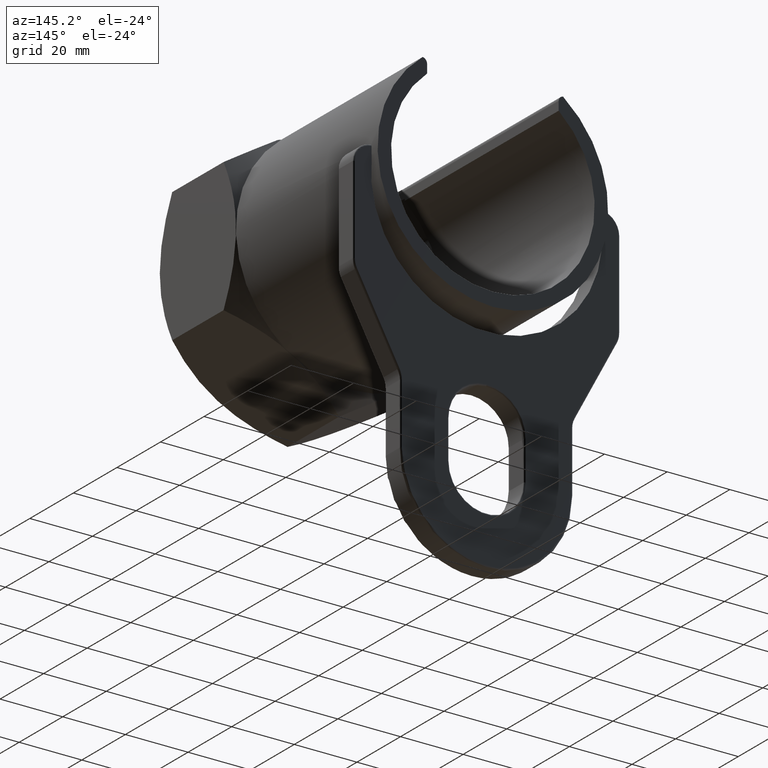
[diagram: clean part render]
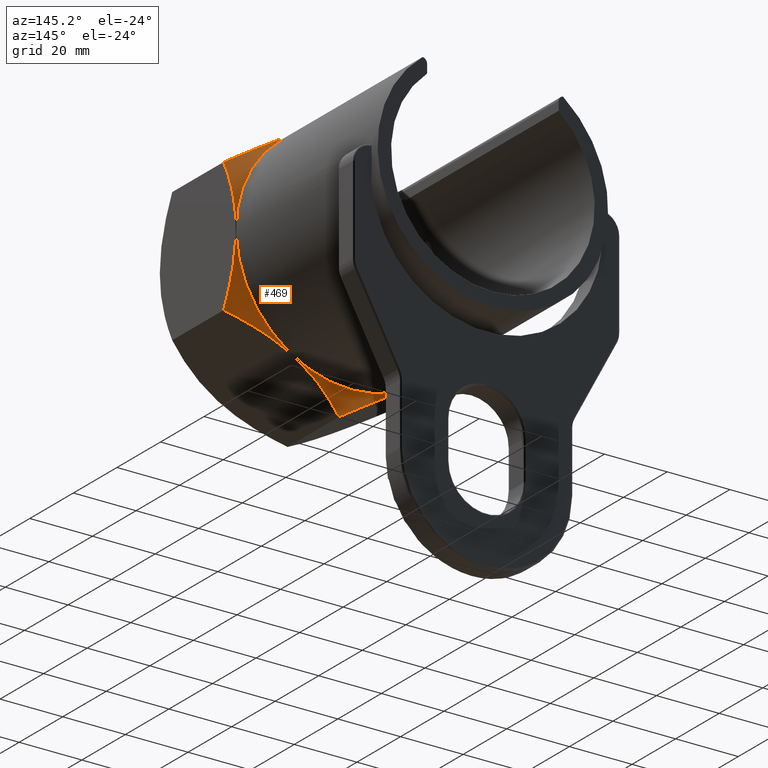
[diagram: same view with one face highlighted and labeled with its STEP entity id]
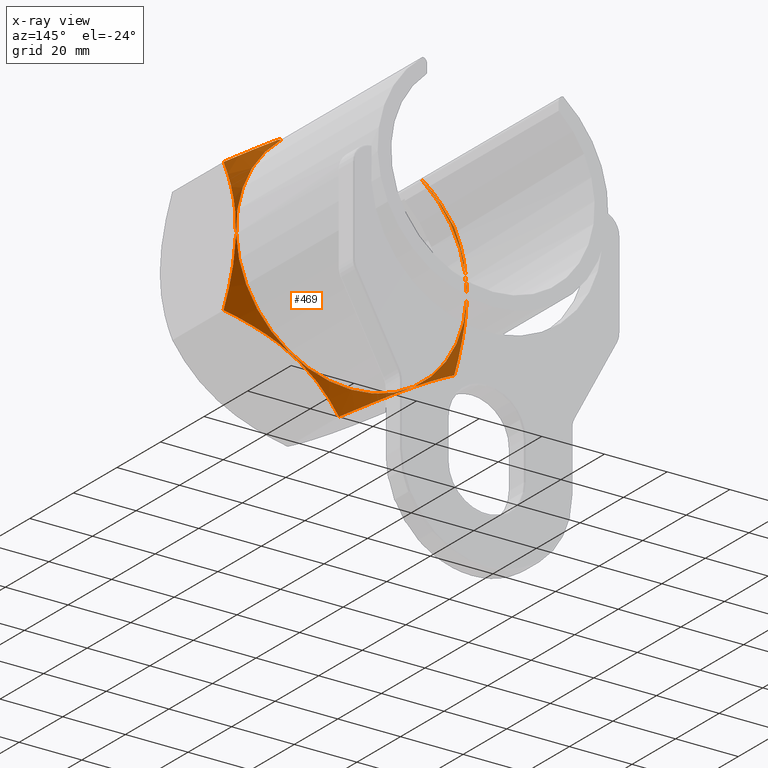
[diagram: x-ray of the same camera — body ghosted, the highlighted face saturated]
A machine part, auxiliary view. The second image highlights one B-rep face of the part: STEP entity #469.
The next image is the same camera in x-ray: the body ghosted, the highlighted face saturated — about 13% of this face is hidden behind the body in this view.
In plain terms, the highlighted conical surface has half-angle 45 deg.
Its self-contained STEP definition (entity closure, byte-faithful):
#61 = VERTEX_POINT ( 'NONE', #720 ) ;
#63 = EDGE_CURVE ( 'NONE', #61, #3081, #719, .T. ) ;
#262 = VERTEX_POINT ( 'NONE', #1041 ) ;
#289 = EDGE_CURVE ( 'NONE', #262, #298, #1106, .T. ) ;
#298 = VERTEX_POINT ( 'NONE', #1155 ) ;
#464 = ORIENTED_EDGE ( 'NONE', *, *, #468, .T. ) ;
#465 = ORIENTED_EDGE ( 'NONE', *, *, #289, .F. ) ;
#466 = ORIENTED_EDGE ( 'NONE', *, *, #2783, .F. ) ;
#467 = ORIENTED_EDGE ( 'NONE', *, *, #506, .T. ) ;
#468 = EDGE_CURVE ( 'NONE', #3130, #298, #1445, .T. ) ;
#469 = ADVANCED_FACE ( 'NONE', ( #1444 ), #1443, .T. ) ;
#470 = EDGE_LOOP ( 'NONE', ( #471, #464, #465, #466, #467, #507, #508, #509, #510, #511 ) ) ;
#471 = ORIENTED_EDGE ( 'NONE', *, *, #3112, .T. ) ;
#506 = EDGE_CURVE ( 'NONE', #2781, #2873, #1489, .T. ) ;
#507 = ORIENTED_EDGE ( 'NONE', *, *, #2784, .T. ) ;
#508 = ORIENTED_EDGE ( 'NONE', *, *, #63, .T. ) ;
#509 = ORIENTED_EDGE ( 'NONE', *, *, #3077, .T. ) ;
#510 = ORIENTED_EDGE ( 'NONE', *, *, #3080, .T. ) ;
#511 = ORIENTED_EDGE ( 'NONE', *, *, #3129, .T. ) ;
#688 = CARTESIAN_POINT ( 'NONE',  ( 36.80607966083862700, 29.30597966083865600, -21.25000000000001100 ) ) ;
#689 = CARTESIAN_POINT ( 'NONE',  ( 36.80607966083863400, 30.13100971287245500, -19.59993989593242200 ) ) ;
#690 = CARTESIAN_POINT ( 'NONE',  ( 36.80607966083862700, 30.90222962293450200, -17.91465623052685500 ) ) ;
#691 = CARTESIAN_POINT ( 'NONE',  ( 36.80607966083862700, 32.29440648224786500, -14.45622895992399000 ) ) ;
#692 = CARTESIAN_POINT ( 'NONE',  ( 36.80607966083863400, 32.90494889450358300, -12.70781321950979000 ) ) ;
#693 = CARTESIAN_POINT ( 'NONE',  ( 36.80607966083862700, 33.91441019492877000, -9.163479619035173900 ) ) ;
#694 = CARTESIAN_POINT ( 'NONE',  ( 36.80607966083861300, 34.31314081710690500, -7.367519499808695500 ) ) ;
#695 = CARTESIAN_POINT ( 'NONE',  ( 36.80607966083862000, 34.72069713922208900, -4.630809806353972200 ) ) ;
#696 = CARTESIAN_POINT ( 'NONE',  ( 36.80607966083862000, 34.82479753759478300, -3.711446087710020200 ) ) ;
#697 = CARTESIAN_POINT ( 'NONE',  ( 36.80607966083862000, 34.92969416464220700, -2.320895776278848000 ) ) ;
#698 = CARTESIAN_POINT ( 'NONE',  ( 36.80607966083862700, 34.95612107913474600, -1.855462380871699500 ) ) ;
#699 = CARTESIAN_POINT ( 'NONE',  ( 36.80607966083862700, 34.99135058472245400, -0.9206395425323278300 ) ) ;
#700 = CARTESIAN_POINT ( 'NONE',  ( 36.80607966083863400, 35.00008358866212900, -0.4516526484240435700 ) ) ;
#701 = CARTESIAN_POINT ( 'NONE',  ( 36.80607966083862700, 34.99915092558264000, 1.880216096618755800 ) ) ;
#702 = CARTESIAN_POINT ( 'NONE',  ( 36.80607966083862000, 34.85601277565524500, 3.721925959370413500 ) ) ;
#703 = CARTESIAN_POINT ( 'NONE',  ( 36.80607966083862700, 34.31390877201400300, 7.362612278501280200 ) ) ;
#704 = CARTESIAN_POINT ( 'NONE',  ( 36.80607966083862700, 33.91522608688049400, 9.161636035301189200 ) ) ;
#705 = CARTESIAN_POINT ( 'NONE',  ( 36.80607966083862700, 33.15398436454494700, 11.83290782077411900 ) ) ;
#706 = CARTESIAN_POINT ( 'NONE',  ( 36.80607966083863400, 32.87307399842310900, 12.71879442646361400 ) ) ;
#707 = CARTESIAN_POINT ( 'NONE',  ( 36.80607966083864100, 32.26181808827893600, 14.48230999601942200 ) ) ;
#715 = CARTESIAN_POINT ( 'NONE',  ( 36.80607966083863400, 31.93394454114889000, 15.35284706981289400 ) ) ;
#716 = CARTESIAN_POINT ( 'NONE',  ( 36.80607966083862000, 30.89494993199369000, 17.93035882874587700 ) ) ;
#717 = CARTESIAN_POINT ( 'NONE',  ( 36.80607966083863400, 30.12798232575215700, 19.60599467017303600 ) ) ;
#718 = CARTESIAN_POINT ( 'NONE',  ( 36.80607966083862700, 29.30597966083865900, 21.25000000000000000 ) ) ;
#719 = B_SPLINE_CURVE_WITH_KNOTS ( 'NONE', 3,
 ( #718, #717, #716, #715, #707, #706, #705, #704, #703, #702, #701, #700, #699, #698, #697, #696, #695, #694, #693, #692, #691, #690, #689, #688 ),
 .UNSPECIFIED., .F., .F.,
 ( 4, 2, 2, 2, 2, 2, 2, 2, 2, 2, 2, 4 ),
 ( 0.02239402237148263900, 0.02789891593236574700, 0.03065136271280730100, 0.03340380949324885100, 0.03890870305413197300, 0.04441359661501509400, 0.04578982000523587600, 0.04716604339545665800, 0.04991849017589821600, 0.05542338373678133700, 0.06092827729766445200, 0.06643317085854756600 ),
 .UNSPECIFIED. ) ;
#720 = CARTESIAN_POINT ( 'NONE',  ( 36.80607966083862700, 29.30597966083865900, 21.25000000000000000 ) ) ;
#1041 = CARTESIAN_POINT ( 'NONE',  ( 0.0000000000000000000, 35.00000000000000000, -36.80597966083862400 ) ) ;
#1102 = DIRECTION ( 'NONE',  ( 0.0000000000000000000, 0.0000000000000000000, 1.000000000000000000 ) ) ;
#1103 = DIRECTION ( 'NONE',  ( 0.0000000000000000000, 1.000000000000000000, 0.0000000000000000000 ) ) ;
#1104 = CARTESIAN_POINT ( 'NONE',  ( 0.0000000000000000000, 35.00000000000000000, 0.0000000000000000000 ) ) ;
#1105 = AXIS2_PLACEMENT_3D ( 'NONE', #1104, #1103, #1102 ) ;
#1106 = CIRCLE ( 'NONE', #1105, 36.80597966083862400 ) ;
#1155 = CARTESIAN_POINT ( 'NONE',  ( -22.41460836996280600, 35.00000000000000000, 29.19358611776325700 ) ) ;
#1434 = CARTESIAN_POINT ( 'NONE',  ( -22.41460836996280600, 35.00000000000000000, 29.19358611776325700 ) ) ;
#1435 = CARTESIAN_POINT ( 'NONE',  ( -22.56873166143539300, 34.89187913438423300, 29.21156544923700300 ) ) ;
#1436 = CARTESIAN_POINT ( 'NONE',  ( -22.73170697317548800, 34.79490998254656400, 29.20807869738616000 ) ) ;
#1437 = CARTESIAN_POINT ( 'NONE',  ( -23.06770846419382400, 34.63785950541547700, 29.14400566968382100 ) ) ;
#1438 = CARTESIAN_POINT ( 'NONE',  ( -23.23747003815299900, 34.57943790951056000, 29.08384041818649700 ) ) ;
#1439 = CARTESIAN_POINT ( 'NONE',  ( -23.40000000000000600, 34.55037183353517300, 28.99000370096275200 ) ) ;
#1440 = CARTESIAN_POINT ( 'NONE',  ( 0.0000000000000000000, 35.00000000000000000, 0.0000000000000000000 ) ) ;
#1441 = AXIS2_PLACEMENT_3D ( 'NONE', #1440, #1442, #1486 ) ;
#1442 = DIRECTION ( 'NONE',  ( 0.0000000000000000000, -1.000000000000000000, 0.0000000000000000000 ) ) ;
#1443 = CONICAL_SURFACE ( 'NONE', #1441, 36.80597966083862400, 0.7853981633974501700 ) ;
#1444 = FACE_OUTER_BOUND ( 'NONE', #470, .T. ) ;
#1445 = B_SPLINE_CURVE_WITH_KNOTS ( 'NONE', 3,
 ( #1439, #1438, #1437, #1436, #1435, #1434 ),
 .UNSPECIFIED., .F., .F.,
 ( 4, 2, 4 ),
 ( 4.906538933386797400E-018, 0.0005594752284101364300, 0.001118950456820268100 ),
 .UNSPECIFIED. ) ;
#1486 = DIRECTION ( 'NONE',  ( 0.0000000000000000000, 0.0000000000000000000, 1.000000000000000000 ) ) ;
#1489 = B_SPLINE_CURVE_WITH_KNOTS ( 'NONE', 3,
 ( #1546, #1545, #1544, #1543, #1542, #1541 ),
 .UNSPECIFIED., .F., .F.,
 ( 4, 2, 4 ),
 ( 0.0000000000000000000, 0.0005606580363028948400, 0.001121316072605789700 ),
 .UNSPECIFIED. ) ;
#1541 = CARTESIAN_POINT ( 'NONE',  ( 23.39999999999873700, 34.55037183353540100, 28.99000370096347400 ) ) ;
#1542 = CARTESIAN_POINT ( 'NONE',  ( 23.23756590996203600, 34.57942076425784700, 29.08378506657161500 ) ) ;
#1543 = CARTESIAN_POINT ( 'NONE',  ( 23.06726305353034000, 34.63795090470086500, 29.14424566137892800 ) ) ;
#1544 = CARTESIAN_POINT ( 'NONE',  ( 22.72935654490106900, 34.79612635691702800, 29.20837056336842600 ) ) ;
#1545 = CARTESIAN_POINT ( 'NONE',  ( 22.56860176825237500, 34.89197025729791300, 29.21155029648121700 ) ) ;
#1546 = CARTESIAN_POINT ( 'NONE',  ( 22.41460836996281700, 35.00000000000000000, 29.19358611776324600 ) ) ;
#1725 = B_SPLINE_CURVE_WITH_KNOTS ( 'NONE', 3,
 ( #1772, #1771, #1770, #1769, #1768, #1767 ),
 .UNSPECIFIED., .F., .F.,
 ( 4, 2, 4 ),
 ( 0.03135539835296671100, 0.03952622615684593700, 0.04769705396072517600 ),
 .UNSPECIFIED. ) ;
#1726 = DIRECTION ( 'NONE',  ( 0.0000000000000000000, 0.0000000000000000000, 1.000000000000000000 ) ) ;
#1727 = DIRECTION ( 'NONE',  ( 0.0000000000000000000, 1.000000000000000000, 0.0000000000000000000 ) ) ;
#1728 = CARTESIAN_POINT ( 'NONE',  ( 0.0000000000000000000, 35.00000000000000000, 0.0000000000000000000 ) ) ;
#1729 = AXIS2_PLACEMENT_3D ( 'NONE', #1728, #1727, #1726 ) ;
#1730 = CIRCLE ( 'NONE', #1729, 36.80597966083862400 ) ;
#1736 = CARTESIAN_POINT ( 'NONE',  ( 22.41460836996281700, 35.00000000000000000, 29.19358611776324600 ) ) ;
#1767 = CARTESIAN_POINT ( 'NONE',  ( 36.80607966083862700, 29.30597966083865900, 21.25000000000000000 ) ) ;
#1768 = CARTESIAN_POINT ( 'NONE',  ( 34.67570049018259900, 30.53595464849289700, 22.47997498765423800 ) ) ;
#1769 = CARTESIAN_POINT ( 'NONE',  ( 32.50511626742547800, 31.63090556583769000, 23.73316237296180400 ) ) ;
#1770 = CARTESIAN_POINT ( 'NONE',  ( 28.05027555428547000, 33.42667914296769300, 26.30516585789009900 ) ) ;
#1771 = CARTESIAN_POINT ( 'NONE',  ( 25.76550278130127900, 34.12733670339729000, 27.62428003340964400 ) ) ;
#1772 = CARTESIAN_POINT ( 'NONE',  ( 23.39999999999873700, 34.55037183353540100, 28.99000370096347400 ) ) ;
#1900 = CARTESIAN_POINT ( 'NONE',  ( 23.39999999999873700, 34.55037183353540100, 28.99000370096347400 ) ) ;
#2254 = CARTESIAN_POINT ( 'NONE',  ( -36.80607966083864100, 29.30597966083864100, -21.25000000000001100 ) ) ;
#2284 = CARTESIAN_POINT ( 'NONE',  ( -4.769189614866691700E-015, 29.30597966083864800, -42.49999999999999300 ) ) ;
#2285 = CARTESIAN_POINT ( 'NONE',  ( 1.446343777122503800, 30.14102662990109500, -41.66495303093756100 ) ) ;
#2286 = CARTESIAN_POINT ( 'NONE',  ( 2.913814591092475800, 30.91494312924568200, -40.81770836146409900 ) ) ;
#2287 = CARTESIAN_POINT ( 'NONE',  ( 5.903996646253989200, 32.30293955038499100, -39.09132594699060800 ) ) ;
#2288 = CARTESIAN_POINT ( 'NONE',  ( 7.428217560910056200, 32.91755001818227600, -38.21131659160948100 ) ) ;
#2289 = CARTESIAN_POINT ( 'NONE',  ( 10.54240269801490500, 33.93646047836341500, -36.41334096439565100 ) ) ;
#2290 = CARTESIAN_POINT ( 'NONE',  ( 12.11037131486442500, 34.33298689183222100, -35.50807386137670100 ) ) ;
#2291 = CARTESIAN_POINT ( 'NONE',  ( 15.27127892876819900, 34.86676581614581500, -33.68312299960581400 ) ) ;
#2292 = CARTESIAN_POINT ( 'NONE',  ( 16.86424287756903300, 35.00375924656570700, -32.76342483495628200 ) ) ;
#2293 = CARTESIAN_POINT ( 'NONE',  ( 19.27404885414705400, 34.99784570297045100, -31.37212270568418800 ) ) ;
#2294 = CARTESIAN_POINT ( 'NONE',  ( 20.08231106502719900, 34.96060517634423800, -30.90547230065675100 ) ) ;
#2295 = CARTESIAN_POINT ( 'NONE',  ( 21.69887043781595500, 34.81537250730583800, -29.97215131161614500 ) ) ;
#2296 = CARTESIAN_POINT ( 'NONE',  ( 22.49818045910146900, 34.70837308745488100, -29.51066945566098800 ) ) ;
#2297 = CARTESIAN_POINT ( 'NONE',  ( 24.87152212650211400, 34.29312103768211300, -28.14042000510827500 ) ) ;
#2298 = CARTESIAN_POINT ( 'NONE',  ( 26.42099507478443600, 33.89072846017315000, -27.24583138131543700 ) ) ;
#2299 = CARTESIAN_POINT ( 'NONE',  ( 30.98969785588460700, 32.37797809044633400, -24.60808960079983600 ) ) ;
#2300 = CARTESIAN_POINT ( 'NONE',  ( 33.93032088900998400, 30.96629976187835000, -22.91032010103971200 ) ) ;
#2304 = CARTESIAN_POINT ( 'NONE',  ( 36.80607966083862700, 29.30597966083865600, -21.25000000000001100 ) ) ;
#2306 = B_SPLINE_CURVE_WITH_KNOTS ( 'NONE', 3,
 ( #2304, #2300, #2299, #2298, #2297, #2296, #2295, #2294, #2293, #2292, #2291, #2290, #2289, #2288, #2287, #2286, #2285, #2284 ),
 .UNSPECIFIED., .F., .F.,
 ( 4, 2, 2, 2, 2, 2, 2, 2, 4 ),
 ( 2.544305312389295200E-007, 0.01097546105618650400, 0.01646306436901413500, 0.01920686602542794700, 0.02195066768184176400, 0.02743827099466941000, 0.03292587430749705600, 0.03841347762032470300, 0.04390108093315234900 ),
 .UNSPECIFIED. ) ;
#2322 = CARTESIAN_POINT ( 'NONE',  ( -36.80607966083864100, 29.30597966083864100, -21.25000000000001100 ) ) ;
#2323 = CARTESIAN_POINT ( 'NONE',  ( -35.35973588371613400, 30.14102662990108400, -22.08504696906243600 ) ) ;
#2324 = CARTESIAN_POINT ( 'NONE',  ( -33.89226506974615900, 30.91494312924568200, -22.93229163853590800 ) ) ;
#2325 = CARTESIAN_POINT ( 'NONE',  ( -30.90208301458463700, 32.30293955038498400, -24.65867405300940300 ) ) ;
#2326 = CARTESIAN_POINT ( 'NONE',  ( -29.37786209992857800, 32.91755001818226800, -25.53868340839054000 ) ) ;
#2327 = CARTESIAN_POINT ( 'NONE',  ( -26.26367696282373000, 33.93646047836342200, -27.33665903560436000 ) ) ;
#2328 = CARTESIAN_POINT ( 'NONE',  ( -24.69570834597420400, 34.33298689183222100, -28.24192613862330600 ) ) ;
#2329 = CARTESIAN_POINT ( 'NONE',  ( -21.53480073207043000, 34.86676581614580100, -30.06687700039418600 ) ) ;
#2330 = CARTESIAN_POINT ( 'NONE',  ( -19.94183678326959700, 35.00375924656570700, -30.98657516504371400 ) ) ;
#2331 = CARTESIAN_POINT ( 'NONE',  ( -17.53203080669157600, 34.99784570297046600, -32.37787729431583000 ) ) ;
#2332 = CARTESIAN_POINT ( 'NONE',  ( -16.72376859581142800, 34.96060517634422400, -32.84452769934325300 ) ) ;
#2333 = CARTESIAN_POINT ( 'NONE',  ( -15.10720922302268000, 34.81537250730583100, -33.77784868838385500 ) ) ;
#2334 = CARTESIAN_POINT ( 'NONE',  ( -14.30789920173717000, 34.70837308745488800, -34.23933054433904000 ) ) ;
#2335 = CARTESIAN_POINT ( 'NONE',  ( -11.93455753433652200, 34.29312103768209900, -35.60957999489175300 ) ) ;
#2336 = CARTESIAN_POINT ( 'NONE',  ( -10.38508458605421000, 33.89072846017312200, -36.50416861868457400 ) ) ;
#2337 = CARTESIAN_POINT ( 'NONE',  ( -5.816381804954009000, 32.37797809044632700, -39.14191039920016400 ) ) ;
#2338 = CARTESIAN_POINT ( 'NONE',  ( -2.875758771828654100, 30.96629976187833200, -40.83967989896027700 ) ) ;
#2341 = CARTESIAN_POINT ( 'NONE',  ( -4.769189614866691700E-015, 29.30597966083864800, -42.49999999999999300 ) ) ;
#2342 = B_SPLINE_CURVE_WITH_KNOTS ( 'NONE', 3,
 ( #2341, #2338, #2337, #2336, #2335, #2334, #2333, #2332, #2331, #2330, #2329, #2328, #2327, #2326, #2325, #2324, #2323, #2322 ),
 .UNSPECIFIED., .F., .F.,
 ( 4, 2, 2, 2, 2, 2, 2, 2, 4 ),
 ( 2.544305312389807700E-007, 0.01097546105618652300, 0.01646306436901415900, 0.01920686602542797900, 0.02195066768184179500, 0.02743827099466944100, 0.03292587430749708400, 0.03841347762032472400, 0.04390108093315234900 ),
 .UNSPECIFIED. ) ;
#2343 = CARTESIAN_POINT ( 'NONE',  ( -4.769189614866691700E-015, 29.30597966083864800, -42.49999999999999300 ) ) ;
#2344 = CARTESIAN_POINT ( 'NONE',  ( 36.80607966083862700, 29.30597966083865600, -21.25000000000001100 ) ) ;
#2413 = CARTESIAN_POINT ( 'NONE',  ( -32.51361028145125000, 31.62696350819962300, 23.72825835167753500 ) ) ;
#2414 = CARTESIAN_POINT ( 'NONE',  ( -34.68068009035207700, 30.53307967499457500, 22.47710001415593000 ) ) ;
#2415 = CARTESIAN_POINT ( 'NONE',  ( -36.80607966083864100, 29.30597966083865200, 21.24999999999999600 ) ) ;
#2418 = B_SPLINE_CURVE_WITH_KNOTS ( 'NONE', 3,
 ( #2415, #2414, #2413, #2470, #2469, #2468, #2467, #2466, #2465, #2464 ),
 .UNSPECIFIED., .F., .F.,
 ( 4, 2, 2, 2, 4 ),
 ( 0.03299685162086357000, 0.04116897406752003500, 0.04525503529084826800, 0.04729806590251239100, 0.04934109651417651500 ),
 .UNSPECIFIED. ) ;
#2441 = B_SPLINE_CURVE_WITH_KNOTS ( 'NONE', 3,
 ( #2503, #2502, #2501, #2500, #2499, #2498, #2497, #2496, #2495, #2494, #2493, #2492, #2491, #2490, #2489, #2488, #2487, #2486, #2485, #2484, #2483, #2482, #2481, #2480 ),
 .UNSPECIFIED., .F., .F.,
 ( 4, 2, 2, 2, 2, 2, 2, 2, 2, 2, 2, 4 ),
 ( 0.02917061584437770000, 0.03467971607674433900, 0.04018881630911097500, 0.04569791654147761800, 0.04845246665766093900, 0.04982974171575259300, 0.05120701677384425400, 0.05671611700621088900, 0.06222521723857753200, 0.06497976735476085300, 0.06773431747094416100, 0.07324341770331079000 ),
 .UNSPECIFIED. ) ;
#2442 = CARTESIAN_POINT ( 'NONE',  ( -36.80607966083864100, 29.30597966083865200, 21.24999999999999600 ) ) ;
#2464 = CARTESIAN_POINT ( 'NONE',  ( -23.40000000000000600, 34.55037183353517300, 28.99000370096275200 ) ) ;
#2465 = CARTESIAN_POINT ( 'NONE',  ( -23.98662370341563500, 34.44546287435823500, 28.65131634788272000 ) ) ;
#2466 = CARTESIAN_POINT ( 'NONE',  ( -24.57435301818652100, 34.32220946323573000, 28.31199066978912500 ) ) ;
#2467 = CARTESIAN_POINT ( 'NONE',  ( -25.74157034900108300, 34.04279309189427500, 27.63809742964053500 ) ) ;
#2468 = CARTESIAN_POINT ( 'NONE',  ( -26.32013817743592600, 33.88696978243694200, 27.30406113814921600 ) ) ;
#2469 = CARTESIAN_POINT ( 'NONE',  ( -28.04198013715367900, 33.37518574473661900, 26.30995521920418400 ) ) ;
#2470 = CARTESIAN_POINT ( 'NONE',  ( -29.17141960628754700, 32.97499678727364600, 25.65787303766634900 ) ) ;
#2480 = CARTESIAN_POINT ( 'NONE',  ( -36.80607966083864100, 29.30597966083865200, 21.24999999999999600 ) ) ;
#2481 = CARTESIAN_POINT ( 'NONE',  ( -36.80607966083863400, 30.12798232575214300, 19.60599467017302900 ) ) ;
#2482 = CARTESIAN_POINT ( 'NONE',  ( -36.80607966083863400, 30.89494993199369000, 17.93035882874588400 ) ) ;
#2483 = CARTESIAN_POINT ( 'NONE',  ( -36.80607966083863400, 31.93394454114886100, 15.35284706981289200 ) ) ;
#2484 = CARTESIAN_POINT ( 'NONE',  ( -36.80607966083864100, 32.26181808827891500, 14.48230999601941900 ) ) ;
#2485 = CARTESIAN_POINT ( 'NONE',  ( -36.80607966083864100, 32.87307399842310900, 12.71879442646362300 ) ) ;
#2486 = CARTESIAN_POINT ( 'NONE',  ( -36.80607966083864100, 33.15398436454492500, 11.83290782077411900 ) ) ;
#2487 = CARTESIAN_POINT ( 'NONE',  ( -36.80607966083864800, 33.91522608688049400, 9.161636035301192700 ) ) ;
#2488 = CARTESIAN_POINT ( 'NONE',  ( -36.80607966083864800, 34.31390877201399500, 7.362612278501270400 ) ) ;
#2489 = CARTESIAN_POINT ( 'NONE',  ( -36.80607966083864100, 34.85601277565523000, 3.721925959370405000 ) ) ;
#2490 = CARTESIAN_POINT ( 'NONE',  ( -36.80607966083864800, 34.99915092558264000, 1.880216096618754000 ) ) ;
#2491 = CARTESIAN_POINT ( 'NONE',  ( -36.80607966083864100, 35.00008358866212200, -0.4516526484240439600 ) ) ;
#2492 = CARTESIAN_POINT ( 'NONE',  ( -36.80607966083864800, 34.99135058472243300, -0.9206395425323364900 ) ) ;
#2493 = CARTESIAN_POINT ( 'NONE',  ( -36.80607966083863400, 34.95612107913473900, -1.855462380871706800 ) ) ;
#2494 = CARTESIAN_POINT ( 'NONE',  ( -36.80607966083864800, 34.92969416464219300, -2.320895776278863100 ) ) ;
#2495 = CARTESIAN_POINT ( 'NONE',  ( -36.80607966083863400, 34.82479753759476900, -3.711446087710032600 ) ) ;
#2496 = CARTESIAN_POINT ( 'NONE',  ( -36.80607966083864800, 34.72069713922207500, -4.630809806353982900 ) ) ;
#2497 = CARTESIAN_POINT ( 'NONE',  ( -36.80607966083864800, 34.31314081710691300, -7.367519499808711500 ) ) ;
#2498 = CARTESIAN_POINT ( 'NONE',  ( -36.80607966083865500, 33.91441019492876300, -9.163479619035181000 ) ) ;
#2499 = CARTESIAN_POINT ( 'NONE',  ( -36.80607966083864100, 32.90494889450356200, -12.70781321950978800 ) ) ;
#2500 = CARTESIAN_POINT ( 'NONE',  ( -36.80607966083864800, 32.29440648224785800, -14.45622895992399700 ) ) ;
#2501 = CARTESIAN_POINT ( 'NONE',  ( -36.80607966083864100, 30.90222962293448100, -17.91465623052685900 ) ) ;
#2502 = CARTESIAN_POINT ( 'NONE',  ( -36.80607966083864100, 30.13100971287243000, -19.59993989593242600 ) ) ;
#2503 = CARTESIAN_POINT ( 'NONE',  ( -36.80607966083864100, 29.30597966083864100, -21.25000000000001100 ) ) ;
#2509 = CARTESIAN_POINT ( 'NONE',  ( -23.40000000000000600, 34.55037183353517300, 28.99000370096275200 ) ) ;
#2781 = VERTEX_POINT ( 'NONE', #1736 ) ;
#2783 = EDGE_CURVE ( 'NONE', #2781, #262, #1730, .T. ) ;
#2784 = EDGE_CURVE ( 'NONE', #2873, #61, #1725, .T. ) ;
#2873 = VERTEX_POINT ( 'NONE', #1900 ) ;
#3069 = VERTEX_POINT ( 'NONE', #2254 ) ;
#3077 = EDGE_CURVE ( 'NONE', #3081, #3082, #2306, .T. ) ;
#3080 = EDGE_CURVE ( 'NONE', #3082, #3069, #2342, .T. ) ;
#3081 = VERTEX_POINT ( 'NONE', #2344 ) ;
#3082 = VERTEX_POINT ( 'NONE', #2343 ) ;
#3112 = EDGE_CURVE ( 'NONE', #3131, #3130, #2418, .T. ) ;
#3129 = EDGE_CURVE ( 'NONE', #3069, #3131, #2441, .T. ) ;
#3130 = VERTEX_POINT ( 'NONE', #2509 ) ;
#3131 = VERTEX_POINT ( 'NONE', #2442 ) ;